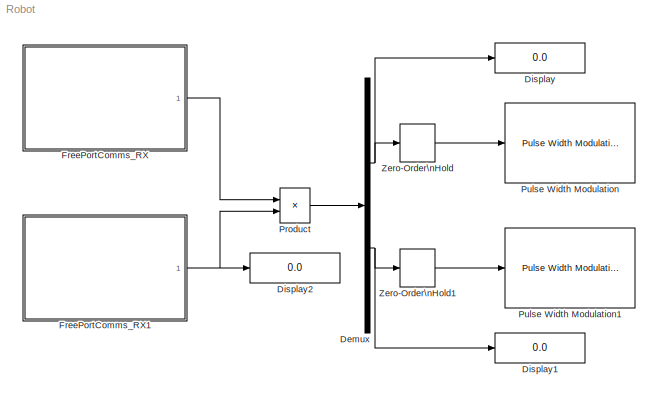
MODEL Robot
KIND model
BLOCK [Demux] Demux
  Outputs = 2
  Ports = [1, 2]
  SID = 1
BLOCK [Display] Display
  Decimation = 1
  Ports = [1]
  SID = 2
BLOCK [Display] Display1
  Decimation = 1
  Ports = [1]
  SID = 3
BLOCK [Display] Display2
  Decimation = 1
  Ports = [1]
  SID = 4
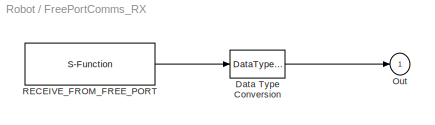
BLOCK [SubSystem] FreePortComms_RX
  Ports = [0, 1]
  RequestExecContextInheritance = off
  SID = 12
  ShowPortLabels = none
  Tag = mcTarget_freePortCommsRX
BLOCK [DataTypeConversion] FreePortComms_RX/Data Type Conversion
  OutDataTypeStr = double
  SID = 12:13
BLOCK [Outport] FreePortComms_RX/Out
  IconDisplay = Port number
  SID = 12:15
BLOCK [S-Function] FreePortComms_RX/RECEIVE_FROM_FREE_PORT
  EnableBusSupport = off
  FunctionName = freePortComms_rxd
  Parameters = sampletime, channel, buf_size, data_type, port, baudrate, format
  Ports = [0, 1]
  SFcnIsStateOwnerBlock = off
  SFunctionDeploymentMode = off
  SID = 12:14
  Tag = mcTarget_freePortCommsRX
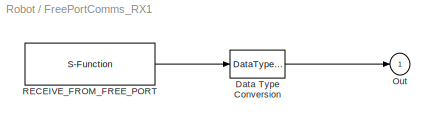
BLOCK [SubSystem] FreePortComms_RX1
  Ports = [0, 1]
  RequestExecContextInheritance = off
  SID = 16
  ShowPortLabels = none
  Tag = mcTarget_freePortCommsRX
BLOCK [DataTypeConversion] FreePortComms_RX1/Data Type Conversion
  OutDataTypeStr = double
  SID = 16:13
BLOCK [Outport] FreePortComms_RX1/Out
  IconDisplay = Port number
  SID = 16:15
BLOCK [S-Function] FreePortComms_RX1/RECEIVE_FROM_FREE_PORT
  EnableBusSupport = off
  FunctionName = freePortComms_rxd
  Parameters = sampletime, channel, buf_size, data_type, port, baudrate, format
  Ports = [0, 1]
  SFcnIsStateOwnerBlock = off
  SFunctionDeploymentMode = off
  SID = 16:14
  Tag = mcTarget_freePortCommsRX
BLOCK [Product] Product
  Ports = [2, 1]
  RndMeth = Floor
  SID = 7
BLOCK [Reference] Pulse Width Modulation  REF=mc9s12tool/Pulse Width Modulation
  FunctionWithSeparateData = off
  PWMperiod = 0.01
  Ports = [1]
  RTWMemSecDataConstants = Inherit from model
  RTWMemSecDataInternal = Inherit from model
  RTWMemSecDataParameters = Inherit from model
  RTWMemSecFuncExecute = Inherit from model
  RTWMemSecFuncInitTerm = Inherit from model
  SID = 21
  ShowPortLabels = FromPortIcon
  SourceBlock = mc9s12tool/Pulse Width Modulation
  SystemSampleTime = -1
  Tag = mcTarget_pwm
  Vmax = 5
  pulse_pin = 1  (8-bit / 16-bit)
  resolution = 16 bit
  sampletime = 0.01
  sig_mon = off
  sign_pin = 1
  sign_port = PTH
BLOCK [Reference] Pulse Width Modulation1  REF=mc9s12tool/Pulse Width Modulation
  FunctionWithSeparateData = off
  PWMperiod = 0.01
  Ports = [1]
  RTWMemSecDataConstants = Inherit from model
  RTWMemSecDataInternal = Inherit from model
  RTWMemSecDataParameters = Inherit from model
  RTWMemSecFuncExecute = Inherit from model
  RTWMemSecFuncInitTerm = Inherit from model
  SID = 18
  ShowPortLabels = FromPortIcon
  SourceBlock = mc9s12tool/Pulse Width Modulation
  SystemSampleTime = -1
  Tag = mcTarget_pwm
  Vmax = 5
  pulse_pin = 3  (8-bit / 16-bit)
  resolution = 16 bit
  sampletime = 0.01
  sig_mon = off
  sign_pin = 2
  sign_port = PTH
BLOCK [ZeroOrderHold] Zero-Order\nHold
  SID = 10
  SampleTime = 0.01
BLOCK [ZeroOrderHold] Zero-Order\nHold1
  SID = 11
  SampleTime = 0.01
NET Demux:1 -> Display:1, Zero-Order\nHold:1
NET Demux:2 -> Display1:1, Zero-Order\nHold1:1
LINE FreePortComms_RX/Data Type Conversion:1 -> FreePortComms_RX/Out:1
LINE FreePortComms_RX/RECEIVE_FROM_FREE_PORT:1 -> FreePortComms_RX/Data Type Conversion:1
LINE FreePortComms_RX1/Data Type Conversion:1 -> FreePortComms_RX1/Out:1
LINE FreePortComms_RX1/RECEIVE_FROM_FREE_PORT:1 -> FreePortComms_RX1/Data Type Conversion:1
NET FreePortComms_RX1:1 -> Display2:1, Product:2
LINE FreePortComms_RX:1 -> Product:1
LINE Product:1 -> Demux:1
LINE Zero-Order\nHold1:1 -> Pulse Width Modulation1:1
LINE Zero-Order\nHold:1 -> Pulse Width Modulation:1
note: NET lines group one-source signal fan-out (src -> all destinations, sorted); 1:1 wires keep LINE
